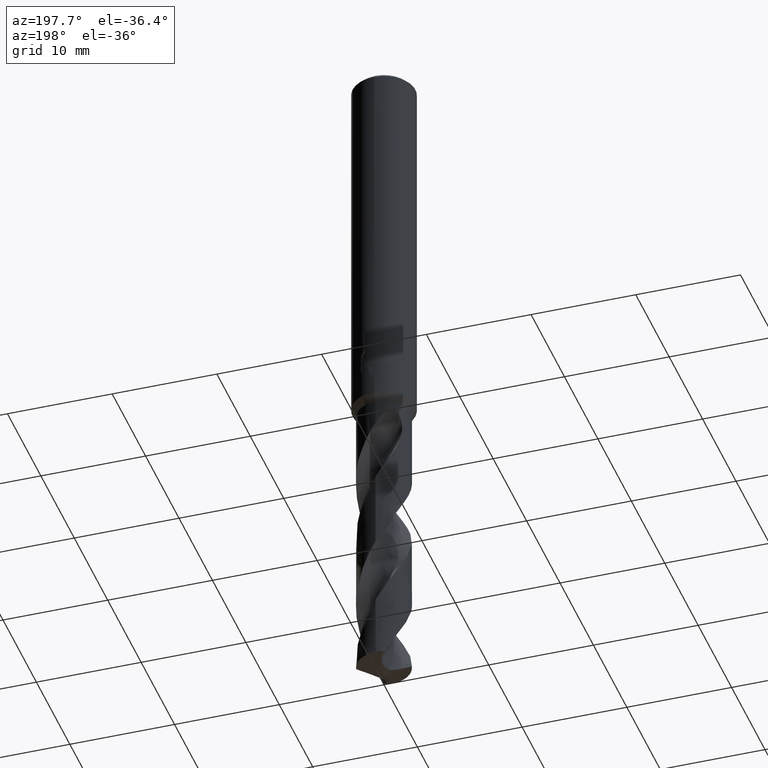
[diagram: clean part render]
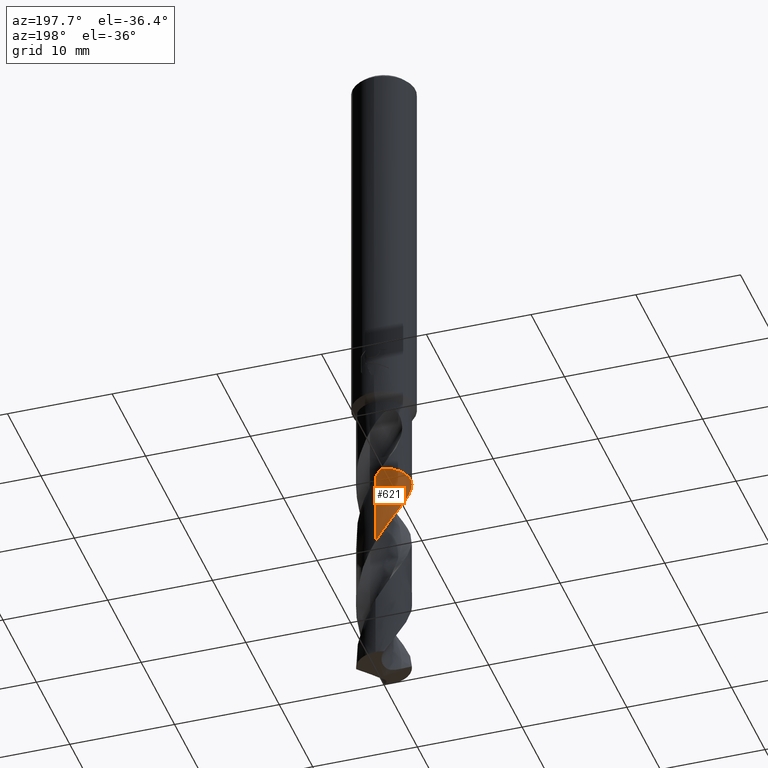
[diagram: same view with one face highlighted and labeled with its STEP entity id]
A machine part, auxiliary view. The second image highlights one B-rep face of the part: STEP entity #621.
In plain terms, the highlighted conical surface has half-angle 0 deg.
Its self-contained STEP definition (entity closure, byte-faithful):
#287=EDGE_CURVE('',#509,#431,#810,.T.);
#347=VERTEX_POINT('',#874);
#431=VERTEX_POINT('',#966);
#439=EDGE_CURVE('',#431,#663,#975,.T.);
#475=EDGE_CURVE('',#347,#511,#1014,.T.);
#509=VERTEX_POINT('',#1051);
#511=VERTEX_POINT('',#1053);
#527=EDGE_CURVE('',#559,#347,#1071,.T.);
#535=EDGE_CURVE('',#663,#559,#1080,.T.);
#551=EDGE_CURVE('',#511,#509,#1098,.T.);
#559=VERTEX_POINT('',#1106);
#621=ADVANCED_FACE('',(#1176),#1177,.T.);
#663=VERTEX_POINT('',#1225);
#810=B_SPLINE_CURVE_WITH_KNOTS('',3,(#1374,#1375,#1376,#1377,#1378,#1379,#1380,#1381,#1382,#1383,#1384,#1385,#1386,#1387,#1388,#1389,#1390,#1391,#1392,#1393,#1394,#1395,#1396,#1397,#1398,#1399,#1400,#1401,#1402,#1403,#1404,#1405,#1406,#1407,#1408,#1409,#1410,#1411,#1412,#1413,#1414,#1415,#1416,#1417,#1418,#1419,#1420,#1421,#1422,#1423,#1424,#1425,#1426,#1427,#1428,#1429,#1430,#1431,#1432,#1433,#1434,#1435),.UNSPECIFIED.,.F.,.F.,(4,2,2,2,2,2,2,2,2,2,2,2,2,2,2,2,2,2,2,2,2,2,2,2,2,2,2,2,2,2,4),(0.0,0.973739436127836,2.32965119518938,2.54896821320102,4.15997326721761,4.19445712639335,5.87819121262056,5.97879634722335,7.05052223187904,7.43641080196372,7.83598952684722,9.37010563366563,9.58068647943678,11.09902579308,11.3326802364308,12.846458184252,13.0944793267504,14.6189399113665,14.8515527838146,16.3470004208488,16.5954426426628,17.4224008078032,17.8381561960623,18.6145384535525,19.9793050859473,20.043079232453,21.0521618834251,21.4307487667855,22.0919819568146,23.0869670029948,24.077534446617),.UNSPECIFIED.);
#874=CARTESIAN_POINT('',(-0.491895978307674,2.50200489206218,-44.4049999999999));
#966=CARTESIAN_POINT('',(-2.45163694437292,-0.701046672574818,-44.405));
#975=B_SPLINE_CURVE_WITH_KNOTS('',3,(#3575,#3576,#3577,#3578),.UNSPECIFIED.,.F.,.F.,(4,4),(0.0,0.00897765204746148),.UNSPECIFIED.);
#1014=B_SPLINE_CURVE_WITH_KNOTS('',3,(#3915,#3916,#3917,#3918,#3919,#3920,#3921,#3922,#3923,#3924,#3925,#3926,#3927,#3928,#3929,#3930,#3931,#3932,#3933,#3934,#3935,#3936,#3937,#3938,#3939,#3940,#3941,#3942,#3943,#3944,#3945,#3946,#3947,#3948,#3949,#3950,#3951,#3952,#3953,#3954,#3955,#3956,#3957,#3958,#3959,#3960,#3961,#3962,#3963,#3964,#3965,#3966,#3967,#3968,#3969,#3970,#3971,#3972),.UNSPECIFIED.,.F.,.F.,(4,2,2,2,2,2,2,2,2,2,2,2,2,2,2,2,2,2,2,2,2,2,2,2,2,2,2,2,4),(0.0,0.904595376409734,1.93838786459377,2.92163758824237,3.91194730940029,4.15071126324412,5.0106353044713,5.50711745147644,5.996456555101,6.97608884258479,7.96485159304592,8.95029012252816,9.44091576198877,10.4734855307966,11.4615583465464,12.447010891369,12.9372804684334,13.9071458155086,14.8969134462882,15.8810176152042,16.8602019877819,17.7334736815047,18.1138178261376,19.5373381391519,20.0747924207916,21.0211814780108,21.7329142797116,22.7997396179062,23.8685175773681),.UNSPECIFIED.);
#1051=CARTESIAN_POINT('',(-5.48515047849248E-015,2.54993953751047,-52.5731450981478));
#1053=CARTESIAN_POINT('',(-8.14968357207502E-015,2.54990417075244,-45.2621727685655));
#1071=B_SPLINE_CURVE_WITH_KNOTS('',3,(#4201,#4202,#4203,#4204),.UNSPECIFIED.,.F.,.F.,(4,4),(0.0,0.00790820006980419),.UNSPECIFIED.);
#1080=CIRCLE('',#4216,2.5499);
#1098=LINE('',#4260,#4261);
#1106=CARTESIAN_POINT('',(-0.494733133515917,2.50144540947859,-44.4));
#1176=FACE_OUTER_BOUND('',#5402,.T.);
#1177=CONICAL_SURFACE('',#5403,2.54995,4.83749034052352E-006);
#1225=CARTESIAN_POINT('',(-2.45083913037174,-0.703830638036376,-44.4));
#1374=CARTESIAN_POINT('',(0.781501621102603,-2.42729380508706,-65.0718759026212));
#1375=CARTESIAN_POINT('',(0.936654392322793,-2.3773387463327,-64.7911907336629));
#1376=CARTESIAN_POINT('',(1.08586653744853,-2.31286871900473,-64.5083894878095));
#1377=CARTESIAN_POINT('',(1.42391276664532,-2.12728008173716,-63.8378065488846));
#1378=CARTESIAN_POINT('',(1.60559432618969,-1.99374198379501,-63.4529806795277));
#1379=CARTESIAN_POINT('',(1.79373256360754,-1.8128135786547,-63.0000320620304));
#1380=CARTESIAN_POINT('',(1.81936453169177,-1.7870878503702,-62.9369175253481));
#1381=CARTESIAN_POINT('',(2.02896410577869,-1.56752095689746,-62.4103172371844));
#1382=CARTESIAN_POINT('',(2.18167503255085,-1.34675639470443,-61.9548301554897));
#1383=CARTESIAN_POINT('',(2.29981489167362,-1.10149690353406,-61.4813319198318));
#1384=CARTESIAN_POINT('',(2.30227058396431,-1.09635485363102,-61.4714174610817));
#1385=CARTESIAN_POINT('',(2.42407273754086,-0.839089902981069,-60.9763627720417));
#1386=CARTESIAN_POINT('',(2.50122522569896,-0.569237315876879,-60.5008260810699));
#1387=CARTESIAN_POINT('',(2.53508815979425,-0.275645132076071,-59.9872357369814));
#1388=CARTESIAN_POINT('',(2.53683231430039,-0.259100044384307,-59.9582911934222));
#1389=CARTESIAN_POINT('',(2.55528237098295,-0.0659746453769235,-59.6210638042064));
#1390=CARTESIAN_POINT('',(2.55371913673103,0.112170922507938,-59.3152669306704));
#1391=CARTESIAN_POINT('',(2.52626241445098,0.35278373731,-58.8967070281293));
#1392=CARTESIAN_POINT('',(2.51660157207608,0.41611801870754,-58.7859803515778));
#1393=CARTESIAN_POINT('',(2.49214181632538,0.544019140548643,-58.5602670956946));
#1394=CARTESIAN_POINT('',(2.47718934060871,0.608469475602214,-58.4451812391754));
#1395=CARTESIAN_POINT('',(2.39289682659295,0.916907266206064,-57.8900442163269));
#1396=CARTESIAN_POINT('',(2.2899444292485,1.15008178218801,-57.4567733730727));
#1397=CARTESIAN_POINT('',(2.13575751794729,1.39357441301278,-56.9560842845463));
#1398=CARTESIAN_POINT('',(2.11656399660145,1.42255727532211,-56.8956015111814));
#1399=CARTESIAN_POINT('',(1.95375463152658,1.65778330530721,-56.3988520743227));
#1400=CARTESIAN_POINT('',(1.78111890382981,1.84199215194843,-55.9695565195785));
#1401=CARTESIAN_POINT('',(1.55410510959151,2.02200724983044,-55.4664489580129));
#1402=CARTESIAN_POINT('',(1.52332984772112,2.04529237806743,-55.3992930349619));
#1403=CARTESIAN_POINT('',(1.28895527102206,2.21439051708825,-54.897404887428));
#1404=CARTESIAN_POINT('',(1.0655531196271,2.33012132861617,-54.4695135236699));
#1405=CARTESIAN_POINT('',(0.790105702992709,2.42479694101052,-53.963802999333));
#1406=CARTESIAN_POINT('',(0.751070157657841,2.43717013170732,-53.8925395966559));
#1407=CARTESIAN_POINT('',(0.469754300601046,2.51893399000189,-53.383784336762));
#1408=CARTESIAN_POINT('',(0.218843590236288,2.55298415636738,-52.9532368732472));
#1409=CARTESIAN_POINT('',(-0.0713909608392822,2.54922900167262,-52.4491913099461));
#1410=CARTESIAN_POINT('',(-0.109744731785705,2.54786572947821,-52.3824047859271));
#1411=CARTESIAN_POINT('',(-0.394743854888623,2.53128170958264,-51.8866159342418));
#1412=CARTESIAN_POINT('',(-0.637909936871401,2.48118055597771,-51.4641936930429));
#1413=CARTESIAN_POINT('',(-0.908684396783313,2.38288245959634,-50.9642127495431));
#1414=CARTESIAN_POINT('',(-0.946854102314993,2.36797307766679,-50.892909110057));
#1415=CARTESIAN_POINT('',(-1.11046211247109,2.29948227822731,-50.5848290176238));
#1416=CARTESIAN_POINT('',(-1.23207109895561,2.236712443033,-50.3490850058337));
#1417=CARTESIAN_POINT('',(-1.40670196089163,2.12792283262497,-49.9935993826759));
#1418=CARTESIAN_POINT('',(-1.46359117710635,2.0891988761234,-49.8747933347799));
#1419=CARTESIAN_POINT('',(-1.6219303879307,1.97178572301406,-49.533633174389));
#1420=CARTESIAN_POINT('',(-1.71900310912138,1.88774680379853,-49.3105739093287));
#1421=CARTESIAN_POINT('',(-1.96822699015388,1.63676673396404,-48.6978806524574));
#1422=CARTESIAN_POINT('',(-2.10494065842658,1.45664980654879,-48.3122750195936));
#1423=CARTESIAN_POINT('',(-2.22131146242342,1.25218294669021,-47.9032234653825));
#1424=CARTESIAN_POINT('',(-2.22644336820325,1.24303512232559,-47.884974498637));
#1425=CARTESIAN_POINT('',(-2.31197198212893,1.08834466670242,-47.577637845967));
#1426=CARTESIAN_POINT('',(-2.37815838371468,0.935042551241771,-47.2905400332395));
#1427=CARTESIAN_POINT('',(-2.44803434222208,0.716312670541916,-46.893727737734));
#1428=CARTESIAN_POINT('',(-2.46487920759324,0.655997593272981,-46.7855521801888));
#1429=CARTESIAN_POINT('',(-2.50498191313688,0.488922723808074,-46.4880711601987));
#1430=CARTESIAN_POINT('',(-2.52361120899432,0.38125819407664,-46.2982588623027));
#1431=CARTESIAN_POINT('',(-2.55286586530009,0.10919565771303,-45.8244515453941));
#1432=CARTESIAN_POINT('',(-2.55459051030163,-0.0555086265221823,-45.5419939333724));
#1433=CARTESIAN_POINT('',(-2.5264015655528,-0.382172497750538,-44.9740259272431));
#1434=CARTESIAN_POINT('',(-2.49673715023633,-0.543345408920365,-44.6882038466516));
#1435=CARTESIAN_POINT('',(-2.45162035553032,-0.701104673448125,-44.4048958367487));
#3575=CARTESIAN_POINT('',(-2.45207731946008,-0.699504839900992,-44.4077686922695));
#3576=CARTESIAN_POINT('',(-2.45166589177987,-0.700947032266713,-44.4051790652632));
#3577=CARTESIAN_POINT('',(-2.45125316211931,-0.702388965549402,-44.4025895014483));
#3578=CARTESIAN_POINT('',(-2.45083913037174,-0.703830638036367,-44.4));
#3915=CARTESIAN_POINT('',(-0.492301017395344,2.50192522350578,-44.4042862558919));
#3916=CARTESIAN_POINT('',(-0.344178322945891,2.53107244669452,-44.6653064245351));
#3917=CARTESIAN_POINT('',(-0.193929190382038,2.54697575884056,-44.9258241065054));
#3918=CARTESIAN_POINT('',(0.128809494830351,2.55246164496695,-45.4855873433931));
#3919=CARTESIAN_POINT('',(0.300927942916833,2.53795103824694,-45.7835310996424));
#3920=CARTESIAN_POINT('',(0.631566782055325,2.47589478541863,-46.3657358487347));
#3921=CARTESIAN_POINT('',(0.789402950107921,2.43017478561917,-46.6487402689001));
#3922=CARTESIAN_POINT('',(1.09511162156632,2.30868755434239,-47.2185507735106));
#3923=CARTESIAN_POINT('',(1.24227180952646,2.23295870219164,-47.5037021800001));
#3924=CARTESIAN_POINT('',(1.41458084217042,2.12193826038591,-47.858491615802));
#3925=CARTESIAN_POINT('',(1.4475352444559,2.09959594192681,-47.9273872513592));
#3926=CARTESIAN_POINT('',(1.59669145569391,1.99329189326123,-48.2446156104271));
#3927=CARTESIAN_POINT('',(1.70621966099023,1.90038429845252,-48.4927746077231));
#3928=CARTESIAN_POINT('',(1.86574891082975,1.74009581742481,-48.8844404282418));
#3929=CARTESIAN_POINT('',(1.92126584507662,1.67860100499183,-49.0276801991696));
#3930=CARTESIAN_POINT('',(2.02539156893786,1.55131035983013,-49.3122825734574));
#3931=CARTESIAN_POINT('',(2.07399443604422,1.48570442546733,-49.4533816935031));
#3932=CARTESIAN_POINT('',(2.2101793165145,1.28214975517026,-49.877593336657));
#3933=CARTESIAN_POINT('',(2.28777049318113,1.13795339799935,-50.1601237662392));
#3934=CARTESIAN_POINT('',(2.41489551526079,0.83523975907893,-50.7285202072127));
#3935=CARTESIAN_POINT('',(2.46382894688696,0.67739575498896,-51.0130907412587));
#3936=CARTESIAN_POINT('',(2.53042245163434,0.35512254535974,-51.583306713123));
#3937=CARTESIAN_POINT('',(2.54805651396703,0.19134709266067,-51.867309977371));
#3938=CARTESIAN_POINT('',(2.55066076771163,-0.0549086122669067,-52.2935231624361));
#3939=CARTESIAN_POINT('',(2.54758460176799,-0.136729117313688,-52.4350098139327));
#3940=CARTESIAN_POINT('',(2.5258466679698,-0.389804169407478,-52.8749414599381));
#3941=CARTESIAN_POINT('',(2.49376578970697,-0.559476488858803,-53.1727591692876));
#3942=CARTESIAN_POINT('',(2.39796984515299,-0.882685822676814,-53.7563394092064));
#3943=CARTESIAN_POINT('',(2.33592839386348,-1.03576208291366,-54.0407681815669));
#3944=CARTESIAN_POINT('',(2.18344771290727,-1.32732474063662,-54.610888969515));
#3945=CARTESIAN_POINT('',(2.09338115001778,-1.46528014419916,-54.8949392200762));
#3946=CARTESIAN_POINT('',(1.93947981665815,-1.65751942325476,-55.3211283433562));
#3947=CARTESIAN_POINT('',(1.88532356352634,-1.71886712443186,-55.4625400066255));
#3948=CARTESIAN_POINT('',(1.71556941253617,-1.89347844835062,-55.8843383929728));
#3949=CARTESIAN_POINT('',(1.59200499316282,-1.99849605374424,-56.164185881134));
#3950=CARTESIAN_POINT('',(1.3238787860521,-2.18561456830833,-56.7302550031949));
#3951=CARTESIAN_POINT('',(1.1796360337102,-2.26671592474935,-57.0151565529123));
#3952=CARTESIAN_POINT('',(0.878452190917358,-2.39949311708696,-57.585470579888));
#3953=CARTESIAN_POINT('',(0.722185425316788,-2.45107062291155,-57.8692262725048));
#3954=CARTESIAN_POINT('',(0.402572091848025,-2.52328746598458,-58.4363317221513));
#3955=CARTESIAN_POINT('',(0.240135043374938,-2.54388330470384,-58.7185416064399));
#3956=CARTESIAN_POINT('',(-0.0686434853795442,-2.55320429856017,-59.2537894917376));
#3957=CARTESIAN_POINT('',(-0.214377174392004,-2.54512273046249,-59.5055917840789));
#3958=CARTESIAN_POINT('',(-0.421534610130549,-2.51569278044948,-59.8677009006145));
#3959=CARTESIAN_POINT('',(-0.484012710661114,-2.50442259624439,-59.9774673000797));
#3960=CARTESIAN_POINT('',(-0.777982362679796,-2.43998646384887,-60.4986336434843));
#3961=CARTESIAN_POINT('',(-1.00183297157756,-2.35694838814648,-60.9084320013612));
#3962=CARTESIAN_POINT('',(-1.28993890927062,-2.20148121870971,-61.4749446308585));
#3963=CARTESIAN_POINT('',(-1.36655725330742,-2.15475569089569,-61.6300776655338));
#3964=CARTESIAN_POINT('',(-1.57077515766016,-2.01494596840058,-62.0589126378159));
#3965=CARTESIAN_POINT('',(-1.6925109262753,-1.91384153161916,-62.3319952397731));
#3966=CARTESIAN_POINT('',(-1.88809131083338,-1.71804155917468,-62.8111096431838));
#3967=CARTESIAN_POINT('',(-1.96605529022698,-1.62824461192557,-63.0163696959398));
#3968=CARTESIAN_POINT('',(-2.14451497101899,-1.39111715500031,-63.5303372864517));
#3969=CARTESIAN_POINT('',(-2.23641709927531,-1.23800223531189,-63.8378221863508));
#3970=CARTESIAN_POINT('',(-2.38698107871075,-0.914693297128274,-64.4548072615058));
#3971=CARTESIAN_POINT('',(-2.445036180673,-0.745639627737795,-64.7628269882436));
#3972=CARTESIAN_POINT('',(-2.48497970854249,-0.572167674840248,-65.0718759026212));
#4201=CARTESIAN_POINT('',(-0.494733133515906,2.5014454094786,-44.4));
#4202=CARTESIAN_POINT('',(-0.493438454809079,2.50170148086782,-44.4022819031714));
#4203=CARTESIAN_POINT('',(-0.492143578539327,2.50195654687538,-44.4045638062329));
#4204=CARTESIAN_POINT('',(-0.490848505880162,2.50221060727519,-44.4068457106341));
#4216=AXIS2_PLACEMENT_3D('',#7544,#7545,#7546);
#4260=CARTESIAN_POINT('',(-3.12161201826565E-016,2.54995,-54.7359379513106));
#4261=VECTOR('',#7580,1.0);
#5402=EDGE_LOOP('',(#7689,#7690,#7691,#7692,#7693,#7694));
#5403=AXIS2_PLACEMENT_3D('',#7695,#7696,#7697);
#7544=CARTESIAN_POINT('',(0.0,0.0,-44.4));
#7545=DIRECTION('',(0.0,0.0,-1.0));
#7546=DIRECTION('',(0.0,1.0,0.0));
#7580=DIRECTION('',(-5.92402140753638E-022,4.83749034050466E-006,-0.999999999988299));
#7689=ORIENTED_EDGE('',*,*,#551,.T.);
#7690=ORIENTED_EDGE('',*,*,#287,.T.);
#7691=ORIENTED_EDGE('',*,*,#439,.T.);
#7692=ORIENTED_EDGE('',*,*,#535,.T.);
#7693=ORIENTED_EDGE('',*,*,#527,.T.);
#7694=ORIENTED_EDGE('',*,*,#475,.T.);
#7695=CARTESIAN_POINT('',(0.0,0.0,-54.7359379513106));
#7696=DIRECTION('',(0.0,-0.0,-1.0));
#7697=DIRECTION('',(0.0,1.0,0.0));